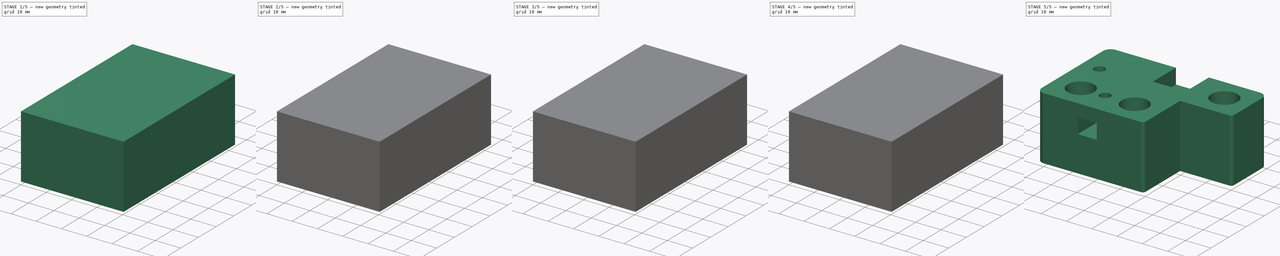
[diagram: build sequence overview — one tinted view per stage of 5, left to right]
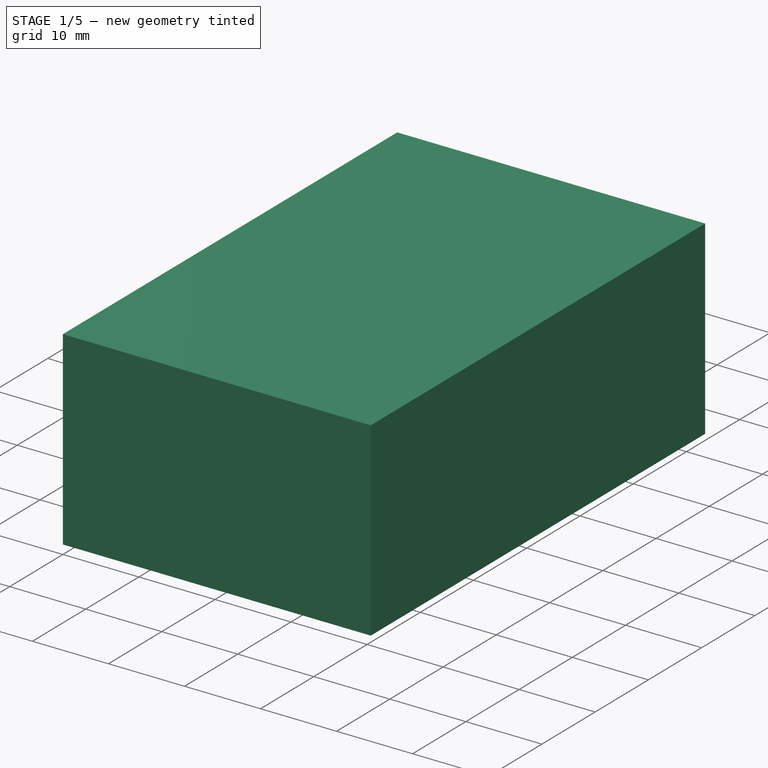
[diagram: stage 1 of 5 — iso view after this stage's code; geometry added in this stage tinted green]
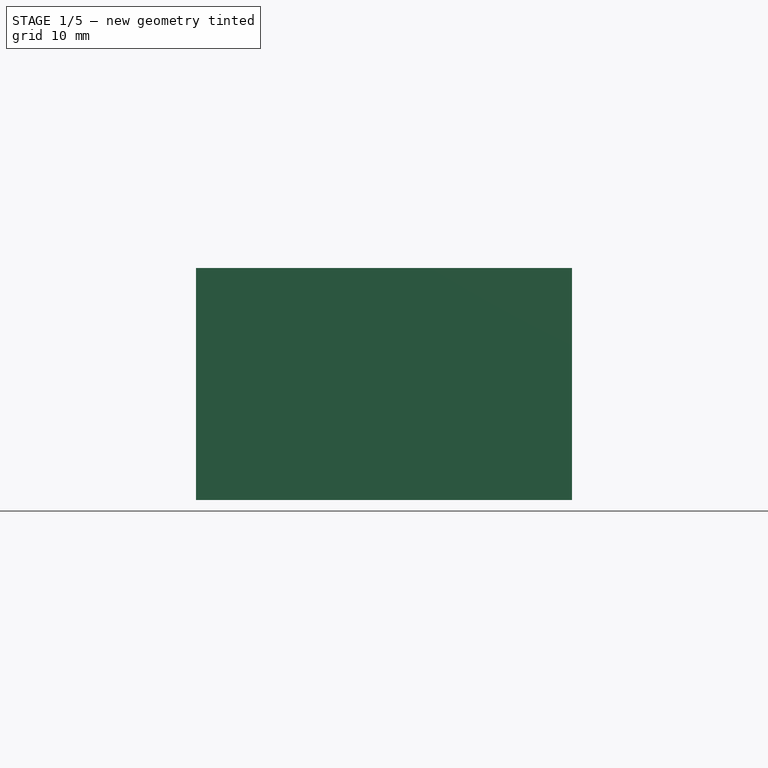
[diagram: stage 1 of 5 — front view after this stage's code; geometry added in this stage tinted green]
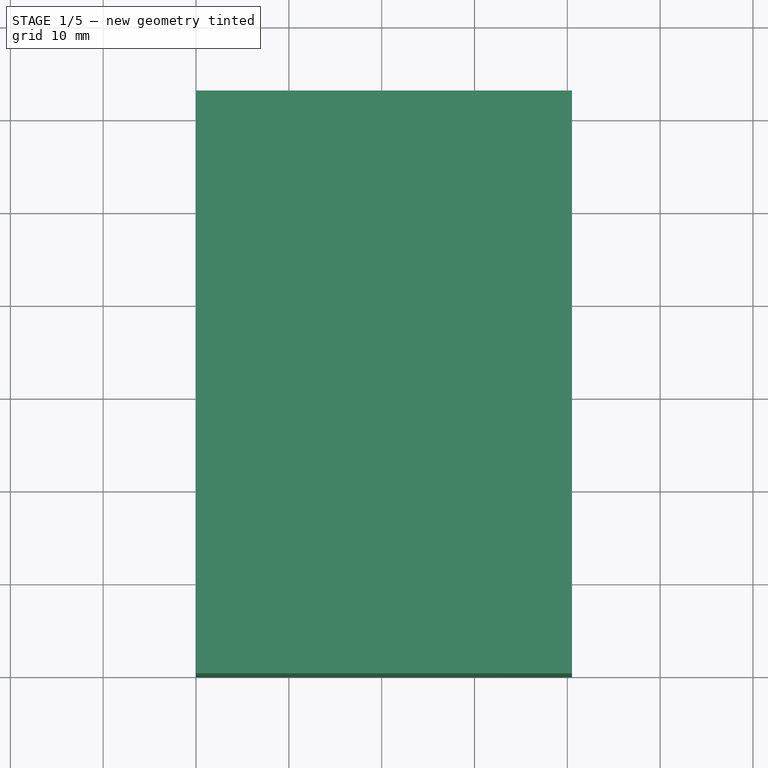
[diagram: stage 1 of 5 — top view after this stage's code; geometry added in this stage tinted green]
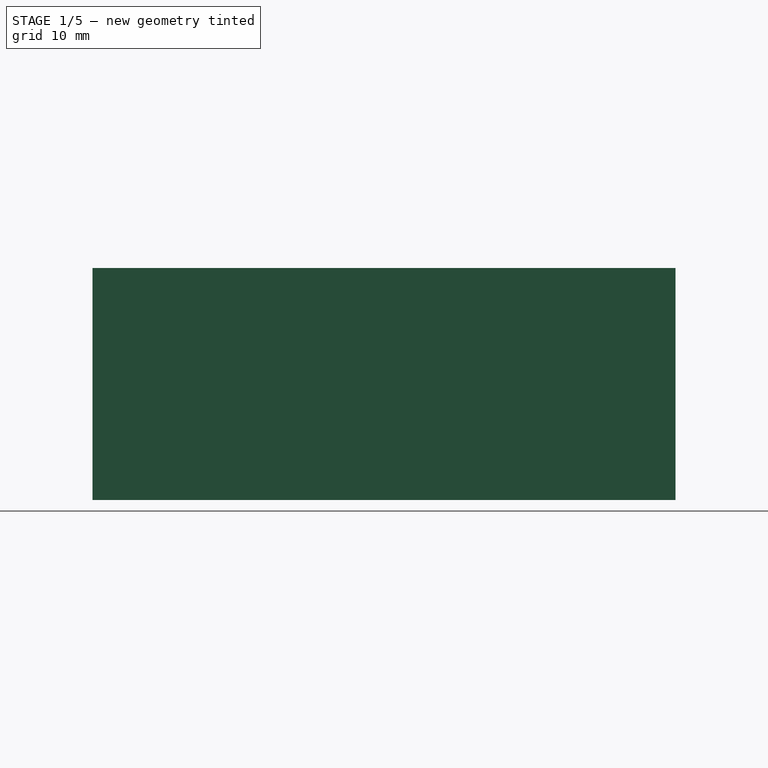
[diagram: stage 1 of 5 — right view after this stage's code; geometry added in this stage tinted green]
FCSTD DOCUMENT  (FreeCAD 0.17R13541 (Git))
Label: Core XY_derecho
License: All rights reserved
LicenseURL: http://en.wikipedia.org/wiki/All_rights_reserved
objects: Part::FeaturePython×6, Part::Box×5, Part::Cylinder×4, Part::Cut×2, Sketcher::SketchObject×1, Part::Extrusion×1, Part::MultiFuse×1, Part::Fillet×1
note: 21 computed .brp shape members not serialized (recipe doc carries the construction recipe); baked Part::Feature solids carry a one-line shape summary decoded from their .brp

FEATURE [Part::Cylinder] Cylinder006  label="taladro10"
  Angle = 360
  AttacherType = Attacher::AttachEngine3D
  Height = 20
  Placement = pos=(30.5,10,5) rot=(0,0,1;0rad)
  Radius = 5.2
FEATURE [Part::FeaturePython] Clone015  label="taladro10_2"  # Draft clone (typed FeaturePython)
  Objects = -> [Cylinder006]
  Placement = pos=(10,31,5) rot=(0,0,1;0rad)
  Scale = (1,1,1)
FEATURE [Part::Box] Box017  label="cubo_base002"
  AttacherType = Attacher::AttachEngine3D
  Height = 25
  Length = 40.5
  Width = 62.8
FEATURE [Part::Box] Box016  label="hueco_taladro4_2"
  AttacherType = Attacher::AttachEngine3D
  Height = 6
  Length = 7.5
  Placement = pos=(21.75,49.8,14) rot=(0,0,1;0rad)
  Width = 13
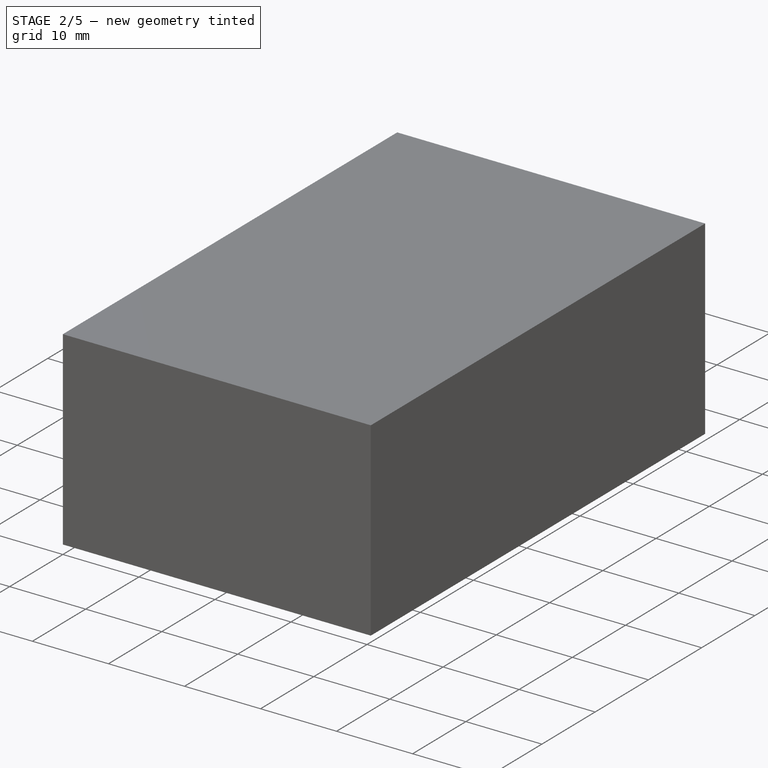
[diagram: stage 2 of 5 — iso view after this stage's code; geometry added in this stage tinted green]
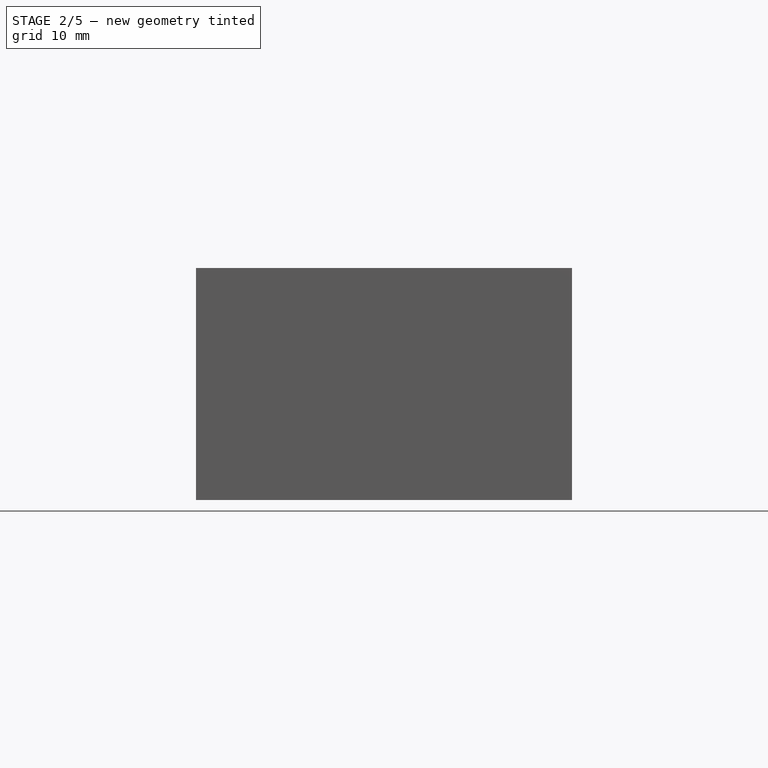
[diagram: stage 2 of 5 — front view after this stage's code; geometry added in this stage tinted green]
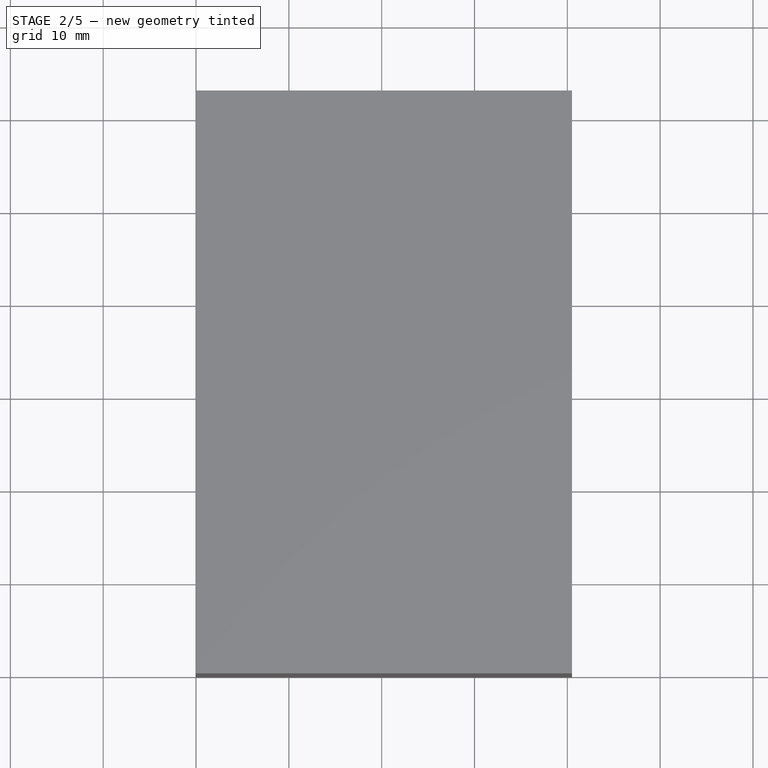
[diagram: stage 2 of 5 — top view after this stage's code; geometry added in this stage tinted green]
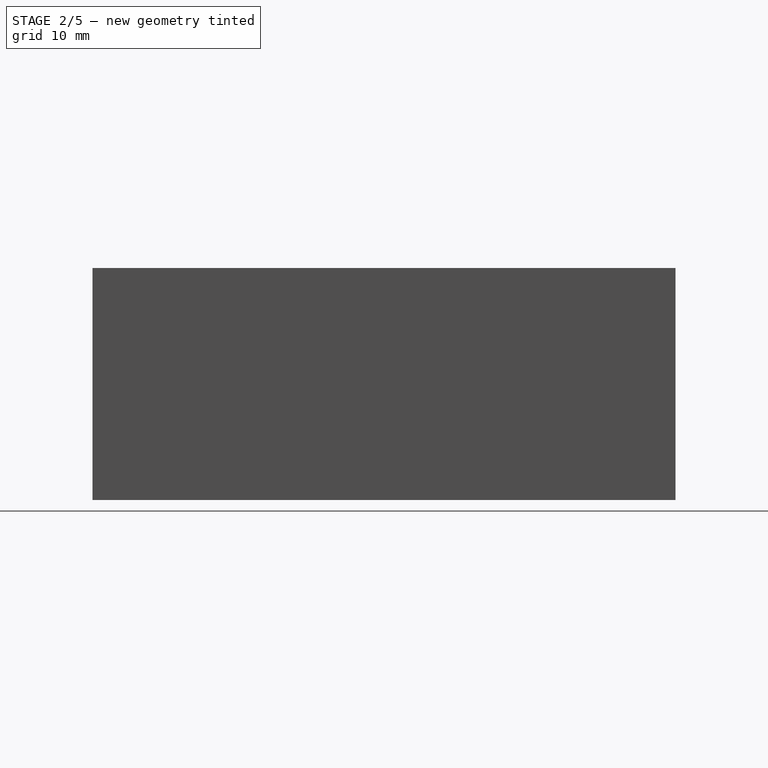
[diagram: stage 2 of 5 — right view after this stage's code; geometry added in this stage tinted green]
FEATURE [Part::Cylinder] Cylinder003  label="taladro_endstop"
  Angle = 360
  AttacherType = Attacher::AttachEngine3D
  Height = 7
  Placement = pos=(35.5,26.14,12) rot=(0,0,1;0rad)
  Radius = 1.05
FEATURE [Part::Cylinder] Cylinder004  label="taladro4"
  Angle = 360
  AttacherType = Attacher::AttachEngine3D
  Height = 5
  Placement = pos=(10,42.7,20) rot=(0,0,1;0rad)
  Radius = 2.1
FEATURE [Part::FeaturePython] Clone012  label="taladro4_2"  # Draft clone (typed FeaturePython)
  Objects = -> [Cylinder004]
  Placement = pos=(25.5,55.8,20) rot=(0,0,1;0rad)
  Scale = (1,1,1)
FEATURE [Part::FeaturePython] Clone011  label="taladro_endstop_2"  # Draft clone (typed FeaturePython)
  Objects = -> [Cylinder003]
  Placement = pos=(35.5,33.14,12) rot=(0,0,1;0rad)
  Scale = (1,1,1)
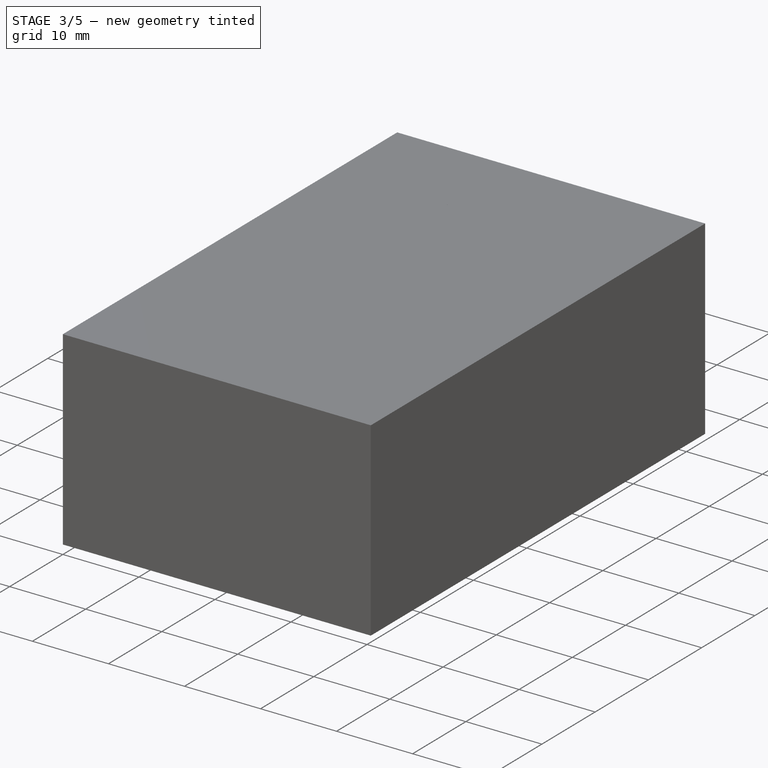
[diagram: stage 3 of 5 — iso view after this stage's code; geometry added in this stage tinted green]
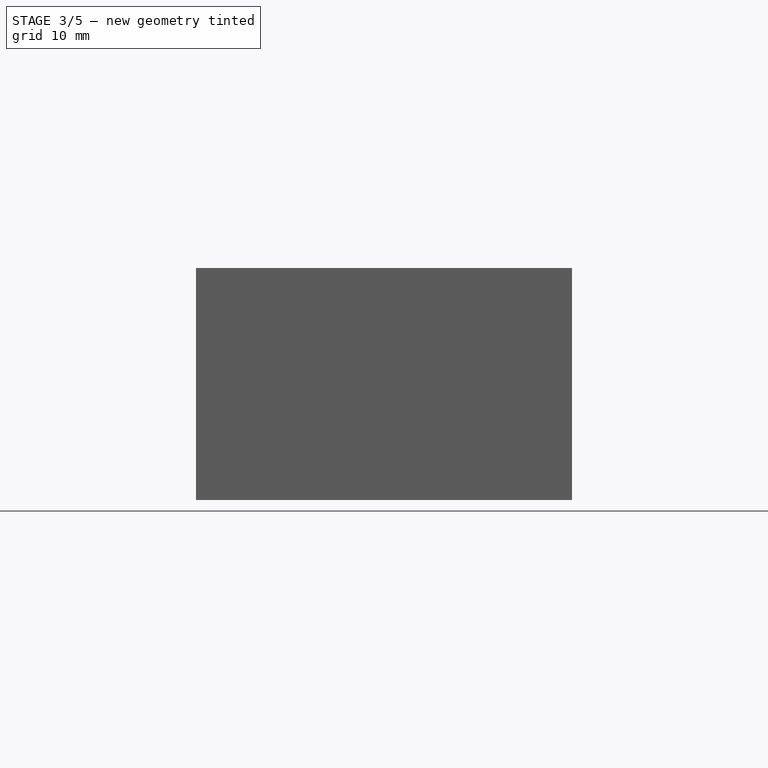
[diagram: stage 3 of 5 — front view after this stage's code; geometry added in this stage tinted green]
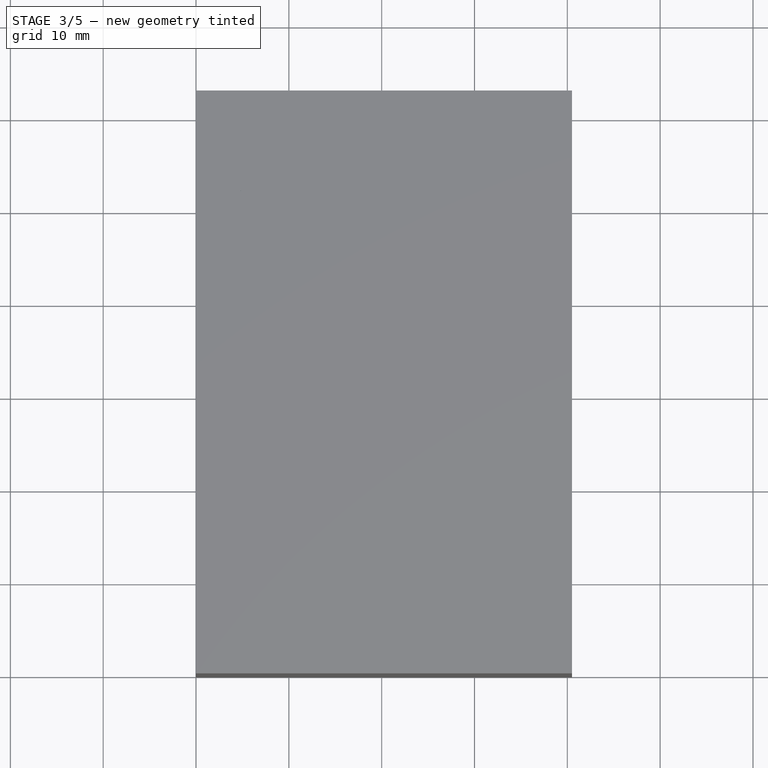
[diagram: stage 3 of 5 — top view after this stage's code; geometry added in this stage tinted green]
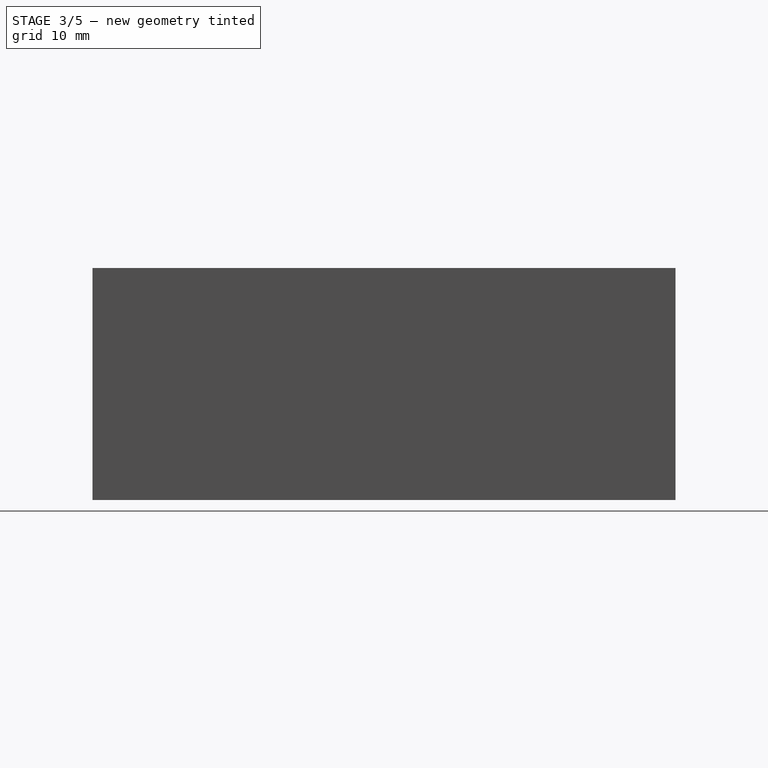
[diagram: stage 3 of 5 — right view after this stage's code; geometry added in this stage tinted green]
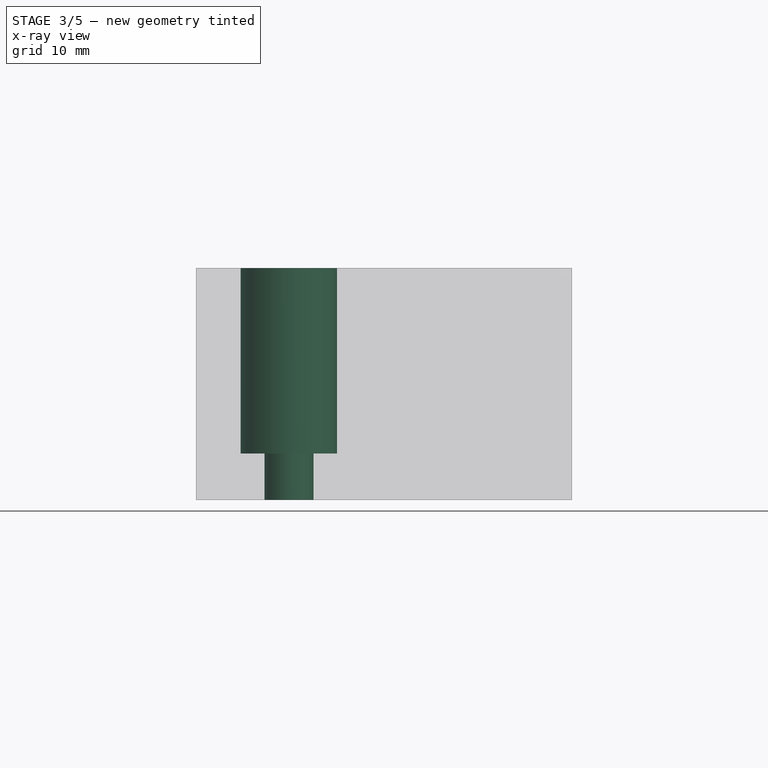
[diagram: stage 3 of 5 — x-ray composite at the front view; earlier geometry ghosted, this stage's added geometry solid]
FEATURE [Part::Cylinder] Cylinder005  label="taladro5"
  Angle = 360
  AttacherType = Attacher::AttachEngine3D
  Height = 5
  Placement = pos=(30.5,10,0) rot=(0,0,1;0rad)
  Radius = 2.65
FEATURE [Part::FeaturePython] Clone014  label="taladro5_2"  # Draft clone (typed FeaturePython)
  Objects = -> [Cylinder005]
  Placement = pos=(10,31,0) rot=(0,0,1;0rad)
  Scale = (1,1,1)
FEATURE [Part::FeaturePython] Clone016  label="taladro5_3"  # Draft clone (typed FeaturePython)
  Objects = -> [Clone014]
  Placement = pos=(10,52.3,0) rot=(0,0,1;0rad)
  Scale = (1,1,1)
FEATURE [Part::FeaturePython] Clone013  label="taladro10_3"  # Draft clone (typed FeaturePython)
  Objects = -> [Clone015]
  Placement = pos=(10,52.3,5) rot=(0,0,1;0rad)
  Scale = (1,1,1)
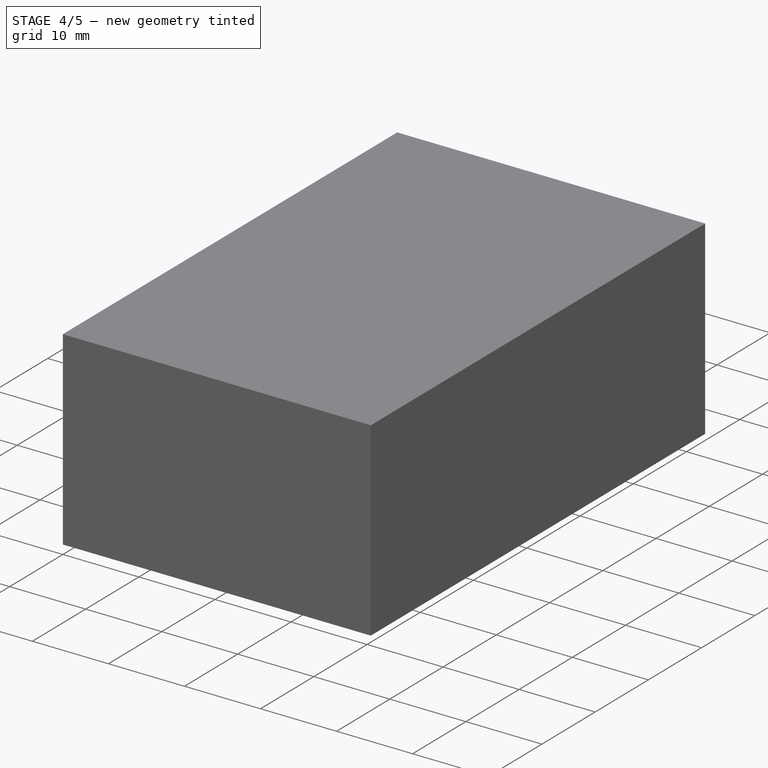
[diagram: stage 4 of 5 — iso view after this stage's code; geometry added in this stage tinted green]
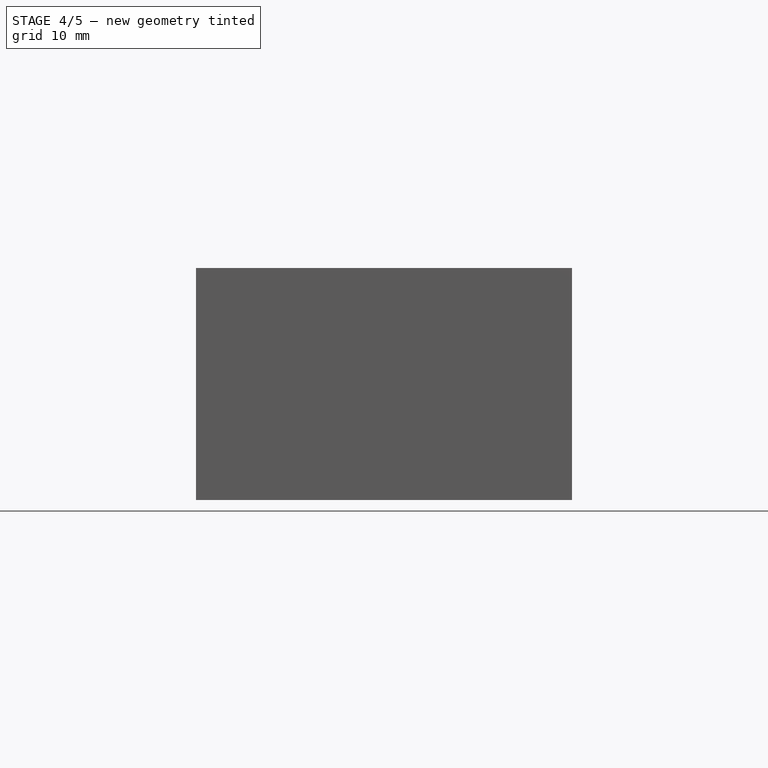
[diagram: stage 4 of 5 — front view after this stage's code; geometry added in this stage tinted green]
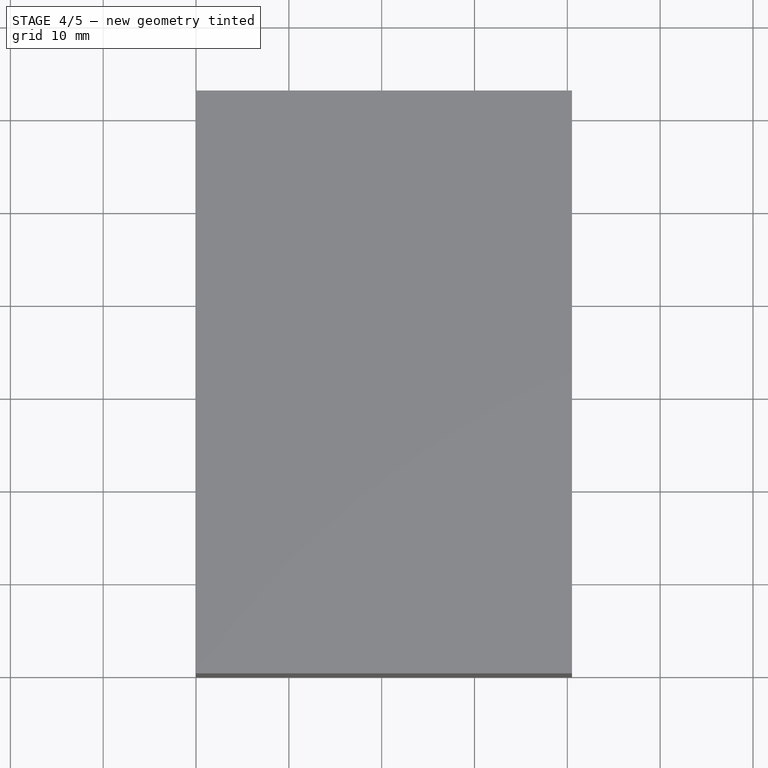
[diagram: stage 4 of 5 — top view after this stage's code; geometry added in this stage tinted green]
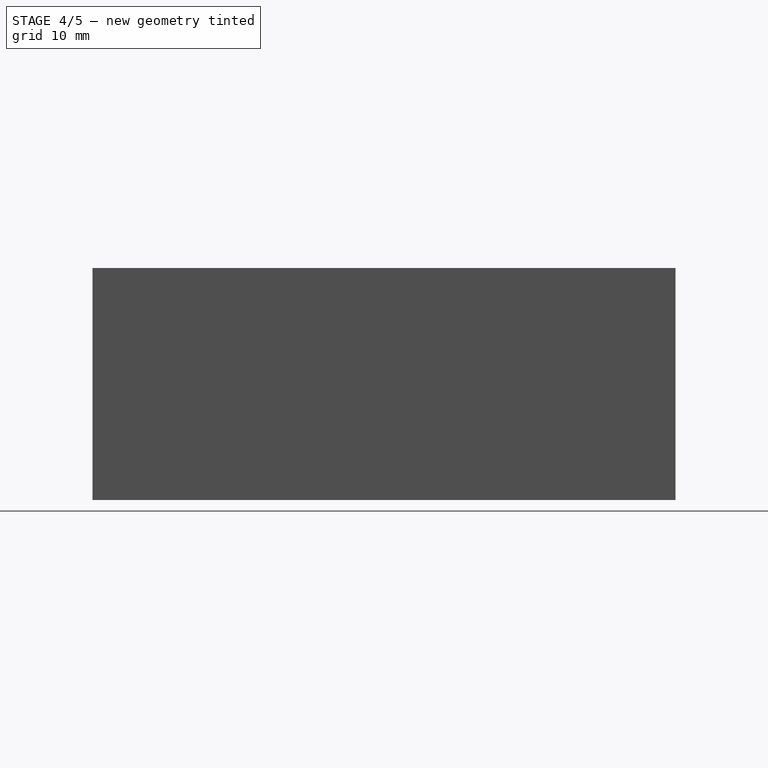
[diagram: stage 4 of 5 — right view after this stage's code; geometry added in this stage tinted green]
FEATURE [Part::Box] Box013  label="hueco_taladro4"
  AttacherType = Attacher::AttachEngine3D
  Height = 6
  Length = 15
  Placement = pos=(0,39,14) rot=(0,0,1;0rad)
  Width = 7.5
FEATURE [Part::Box] Box014  label="hueco_endstop"
  AttacherType = Attacher::AttachEngine3D
  Height = 6
  Length = 13
  Placement = pos=(27.5,23.14,19) rot=(0,0,1;0rad)
  Width = 13
FEATURE [Part::Box] Box015  label="hueco_ejez"
  AttacherType = Attacher::AttachEngine3D
  Height = 25
  Length = 20.5
  Width = 20.5
FEATURE [Part::MultiFuse] Fusion016  label="huecos"
  Shapes = -> [Box016,Box013,Clone012,Cylinder004,Clone011,Cylinder003,Box014,Clone016,Clone014,Cylinder005,Clone013,Clone015,Cylinder006,Box015]
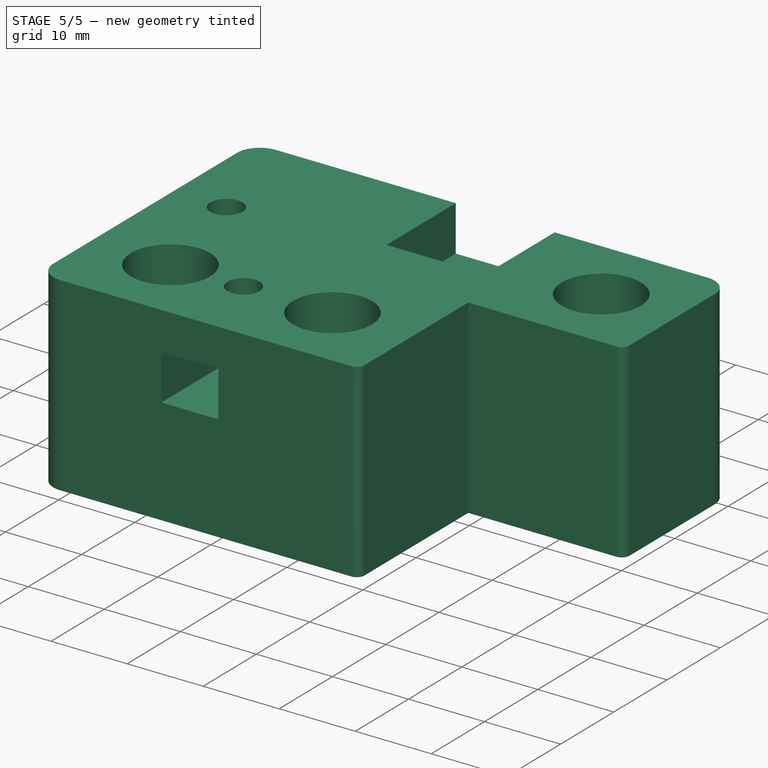
[diagram: stage 5 of 5 — iso view after this stage's code; geometry added in this stage tinted green]
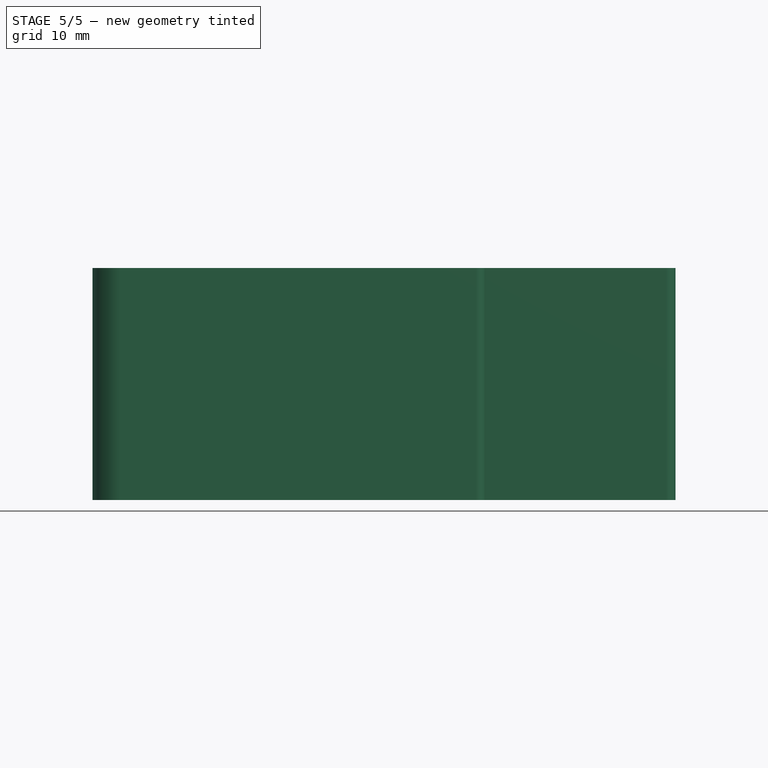
[diagram: stage 5 of 5 — front view after this stage's code; geometry added in this stage tinted green]
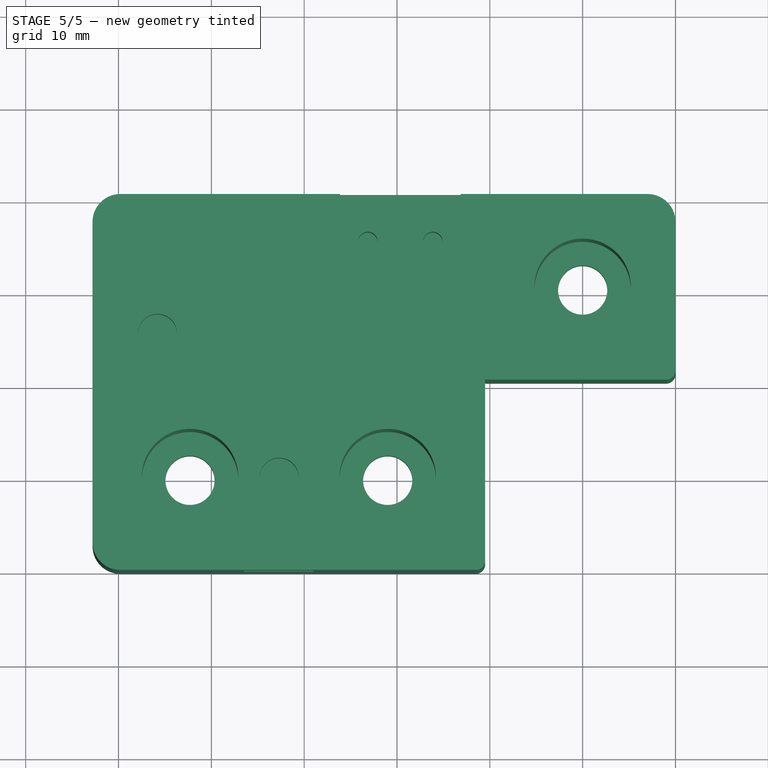
[diagram: stage 5 of 5 — top view after this stage's code; geometry added in this stage tinted green]
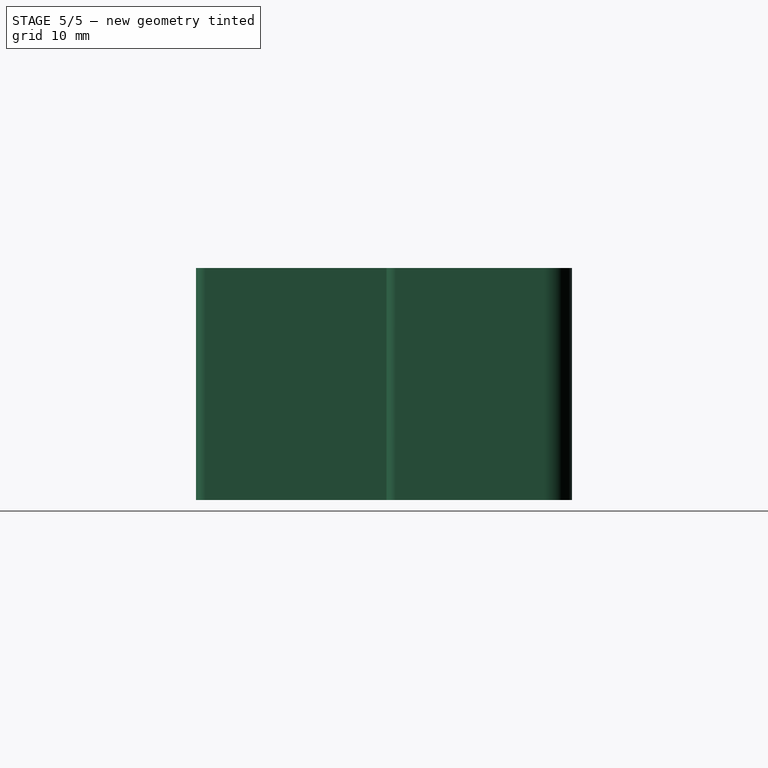
[diagram: stage 5 of 5 — right view after this stage's code; geometry added in this stage tinted green]
FEATURE [Sketcher::SketchObject] Sketch011  label="M10_repraphole002"
  MapMode = 5
  Placement = pos=(0,0,0) rot=(0.57735,0.57735,0.57735;2.0944rad)
  sketch-geometry (4):
    g0: ArcOfCircle CenterX=0 CenterY=0 CenterZ=0 NormalX=0 NormalY=0 NormalZ=1 AngleXU=0 Radius=5.1 StartAngle=2.35619 EndAngle=7.06858
    g1: LineSegment StartX=-3.60624 StartY=3.60625 StartZ=0 EndX=-2.11249 EndY=5.1 EndZ=0
    g2: LineSegment StartX=2.11249 StartY=5.1 StartZ=0 EndX=3.60624 EndY=3.60625 EndZ=0
    g3: LineSegment StartX=-2.11249 StartY=5.1 StartZ=0 EndX=2.11249 EndY=5.1 EndZ=0
  constraints (12):
    c: Coincident(g0,g-1)
    c: Radius(g0) = 5.1  'M10'
    c: Angle(g-1,g1) = 0.785398
    c: Horizontal(g3)
    c: Coincident(g3,g1)
    c: Coincident(g3,g2)
    c: Coincident(g0,g1)
    c: Coincident(g0,g2)
    c: DistanceY(g-1,g1) = 5.1  'M10radio'
    c: Angle(g2,g-1) = 0.785398
    c: Tangent(g2,g0)
    c: Tangent(g1,g0)
FEATURE [Part::Extrusion] Extrude011  label="M10_repraphole_extrud"
  Base = -> Sketch011
  Dir = (20,0,0)
  DirMode = 0
  FaceMakerClass = Part::FaceMakerExtrusion
  LengthFwd = 0
  LengthRev = 0
  Placement = pos=(20.5,41.65,15) rot=(0,0,1;0rad)
  Solid = true
  Symmetric = false
FEATURE [Part::Cut] Cut011  label="Yidler_right_ahuecado"
  Base = -> Box017
  Tool = -> Fusion016
FEATURE [Part::Cut] Cut010  label="Yidler_right_ahuecado2"
  Base = -> Cut011
  Tool = -> Extrude011
FEATURE [Part::Fillet] Fillet003  label="Core XY_derecho"
  Base = -> Cut010
  Edges = 5 edges: [Edge1 r=1,Edge3 r=3,Edge26 r=3,Edge46 r=1,Edge47 r=3]
  Placement = pos=(710,0,610) rot=(0,0,1;1.5708rad)
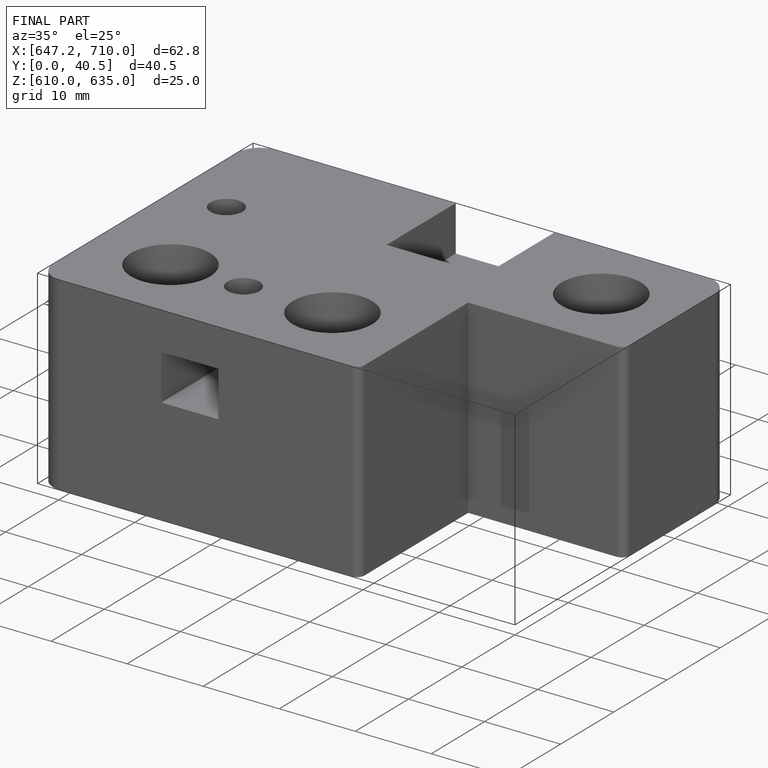
[diagram: finished part — iso view with bounding-box wireframe]
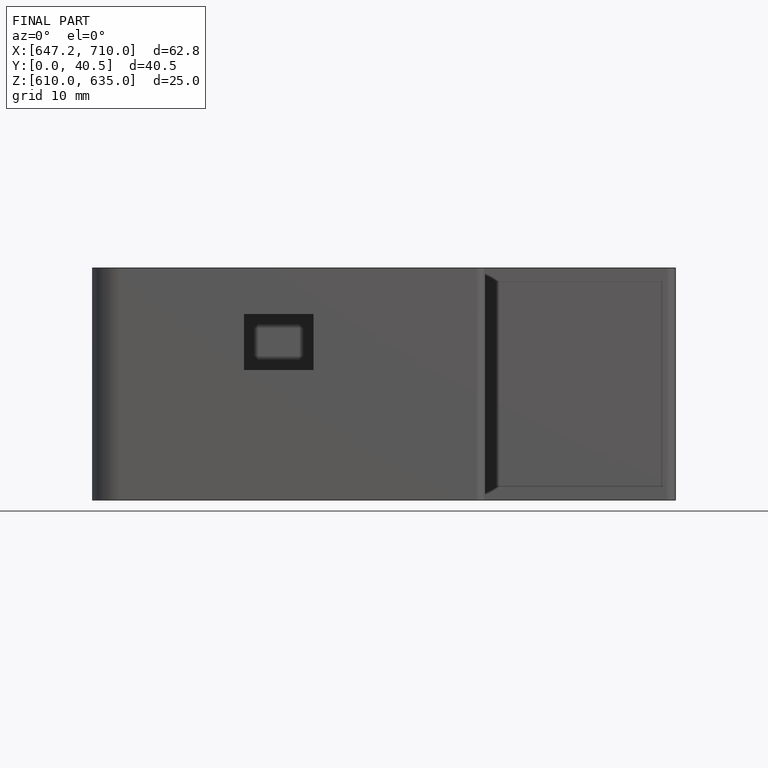
[diagram: finished part — front view with bounding-box wireframe]
